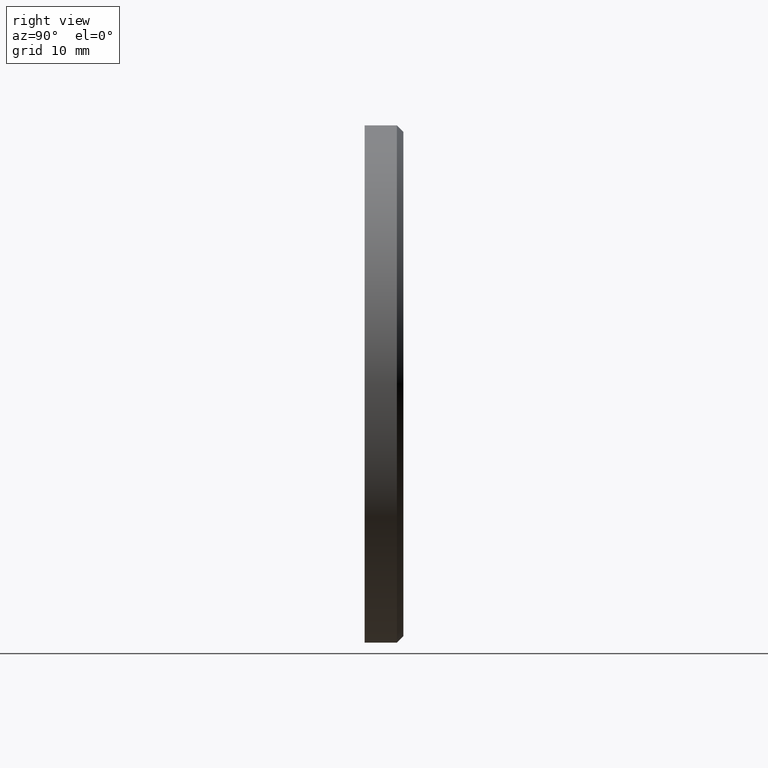
[diagram: clean part render]
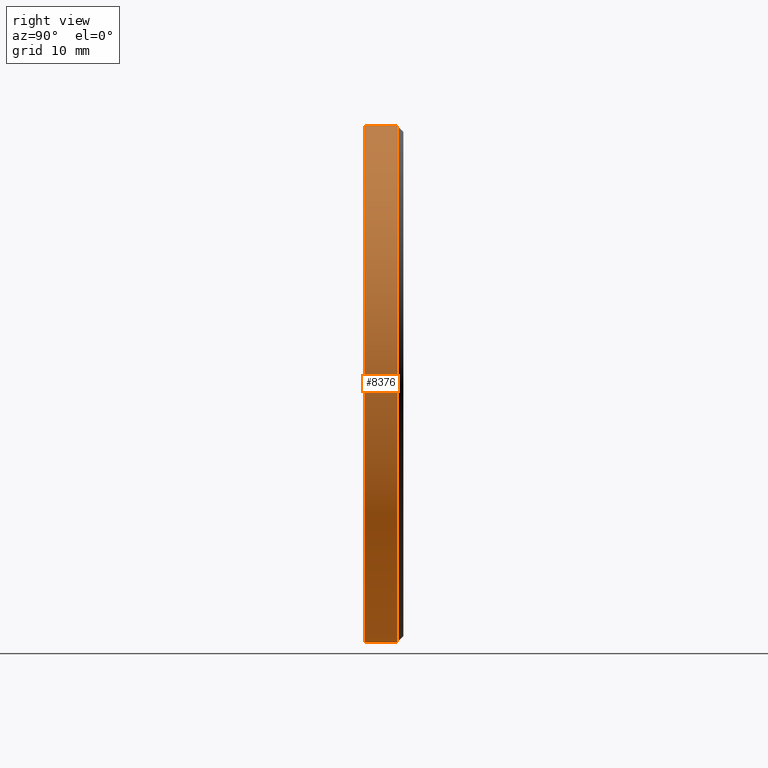
[diagram: same view with one face highlighted and labeled with its STEP entity id]
A machine part, right view. The second image highlights one B-rep face of the part: STEP entity #8376.
In plain terms, the highlighted cylindrical surface (partial cylindrical patch) has radius 40 mm, axis along (-0, -1, -0).
Its self-contained STEP definition (entity closure, byte-faithful):
#291 = CYLINDRICAL_SURFACE ( 'NONE', #15133, 40.00000000000000000 ) ;
#515 = CARTESIAN_POINT ( 'NONE',  ( 4.898587196589413026E-15, 0.000000000000000000, 40.00000000000000000 ) ) ;
#576 = CARTESIAN_POINT ( 'NONE',  ( 0.000000000000000000, 0.000000000000000000, -40.00000000000000000 ) ) ;
#785 = EDGE_CURVE ( 'NONE', #8667, #6189, #12917, .T. ) ;
#1404 = DIRECTION ( 'NONE',  ( 0.000000000000000000, 0.000000000000000000, -1.000000000000000000 ) ) ;
#2059 = LINE ( 'NONE', #14248, #9108 ) ;
#2272 = AXIS2_PLACEMENT_3D ( 'NONE', #7069, #13085, #8476 ) ;
#2847 = EDGE_CURVE ( 'NONE', #14784, #6189, #11764, .T. ) ;
#3800 = AXIS2_PLACEMENT_3D ( 'NONE', #6772, #5440, #13765 ) ;
#5440 = DIRECTION ( 'NONE',  ( 0.000000000000000000, -1.000000000000000000, 0.000000000000000000 ) ) ;
#5459 = CARTESIAN_POINT ( 'NONE',  ( 0.000000000000000000, 6.000000000000000000, -40.00000000000000000 ) ) ;
#5532 = ORIENTED_EDGE ( 'NONE', *, *, #13232, .T. ) ;
#5782 = ORIENTED_EDGE ( 'NONE', *, *, #12828, .T. ) ;
#5913 = VERTEX_POINT ( 'NONE', #13934 ) ;
#6040 = CARTESIAN_POINT ( 'NONE',  ( 0.000000000000000000, 6.000000000000000000, 0.000000000000000000 ) ) ;
#6189 = VERTEX_POINT ( 'NONE', #576 ) ;
#6462 = ORIENTED_EDGE ( 'NONE', *, *, #2847, .F. ) ;
#6701 = CIRCLE ( 'NONE', #3800, 40.00000000000000000 ) ;
#6772 = CARTESIAN_POINT ( 'NONE',  ( 0.000000000000000000, 5.000000000000020428, 0.000000000000000000 ) ) ;
#7069 = CARTESIAN_POINT ( 'NONE',  ( 0.000000000000000000, 0.000000000000000000, 0.000000000000000000 ) ) ;
#7876 = FACE_OUTER_BOUND ( 'NONE', #14491, .T. ) ;
#8376 = ADVANCED_FACE ( 'NONE', ( #7876 ), #291, .T. ) ;
#8476 = DIRECTION ( 'NONE',  ( 0.000000000000000000, 0.000000000000000000, 1.000000000000000000 ) ) ;
#8667 = VERTEX_POINT ( 'NONE', #515 ) ;
#9108 = VECTOR ( 'NONE', #10721, 1000.000000000000000 ) ;
#10721 = DIRECTION ( 'NONE',  ( -0.000000000000000000, -1.000000000000000000, -0.000000000000000000 ) ) ;
#11764 = LINE ( 'NONE', #5459, #13257 ) ;
#12828 = EDGE_CURVE ( 'NONE', #5913, #8667, #2059, .T. ) ;
#12917 = CIRCLE ( 'NONE', #2272, 40.00000000000000000 ) ;
#13085 = DIRECTION ( 'NONE',  ( 0.000000000000000000, 1.000000000000000000, 0.000000000000000000 ) ) ;
#13232 = EDGE_CURVE ( 'NONE', #14784, #5913, #6701, .T. ) ;
#13257 = VECTOR ( 'NONE', #15171, 1000.000000000000000 ) ;
#13624 = CARTESIAN_POINT ( 'NONE',  ( 0.000000000000000000, 5.000000000000020428, -40.00000000000000000 ) ) ;
#13765 = DIRECTION ( 'NONE',  ( 0.000000000000000000, 0.000000000000000000, 1.000000000000000000 ) ) ;
#13934 = CARTESIAN_POINT ( 'NONE',  ( 4.898587196589413026E-15, 5.000000000000020428, 40.00000000000000000 ) ) ;
#14248 = CARTESIAN_POINT ( 'NONE',  ( 4.898587196589413026E-15, 6.000000000000000000, 40.00000000000000000 ) ) ;
#14384 = DIRECTION ( 'NONE',  ( -0.000000000000000000, -1.000000000000000000, -0.000000000000000000 ) ) ;
#14491 = EDGE_LOOP ( 'NONE', ( #5532, #5782, #15002, #6462 ) ) ;
#14784 = VERTEX_POINT ( 'NONE', #13624 ) ;
#15002 = ORIENTED_EDGE ( 'NONE', *, *, #785, .T. ) ;
#15133 = AXIS2_PLACEMENT_3D ( 'NONE', #6040, #14384, #1404 ) ;
#15171 = DIRECTION ( 'NONE',  ( -0.000000000000000000, -1.000000000000000000, -0.000000000000000000 ) ) ;